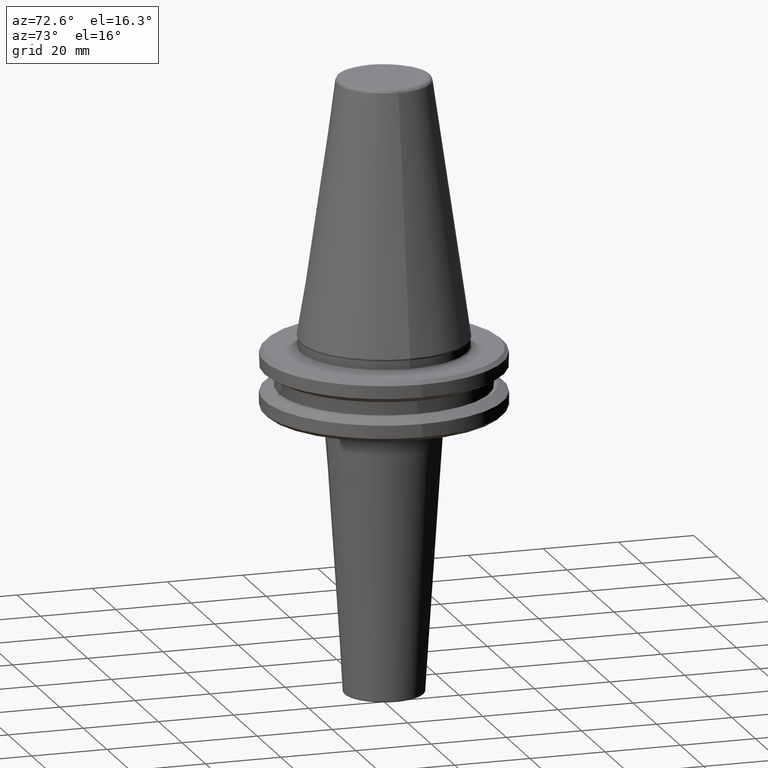
[diagram: clean part render]
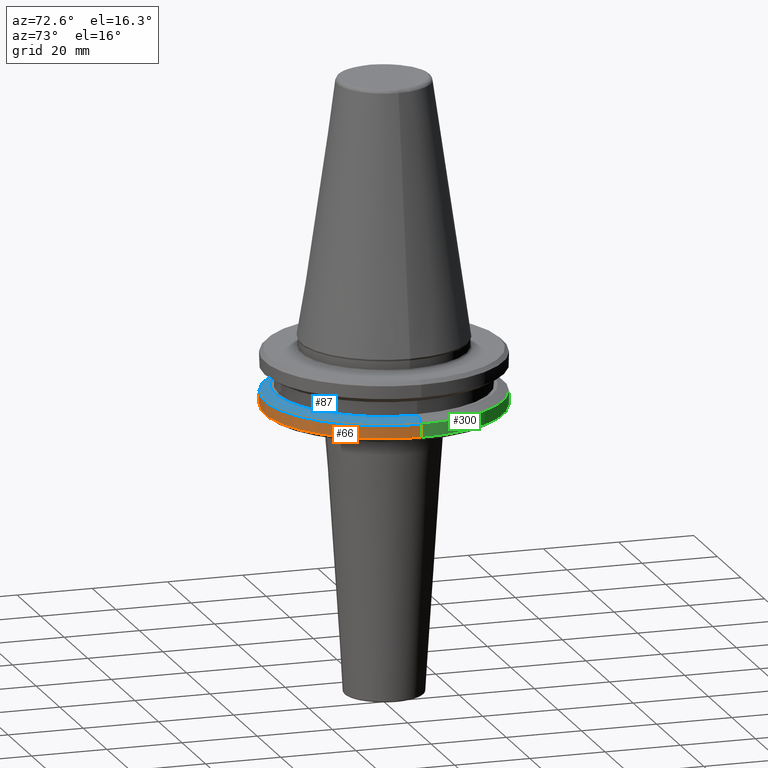
[diagram: same view with three faces highlighted in distinct colors, each labeled with its STEP entity id]
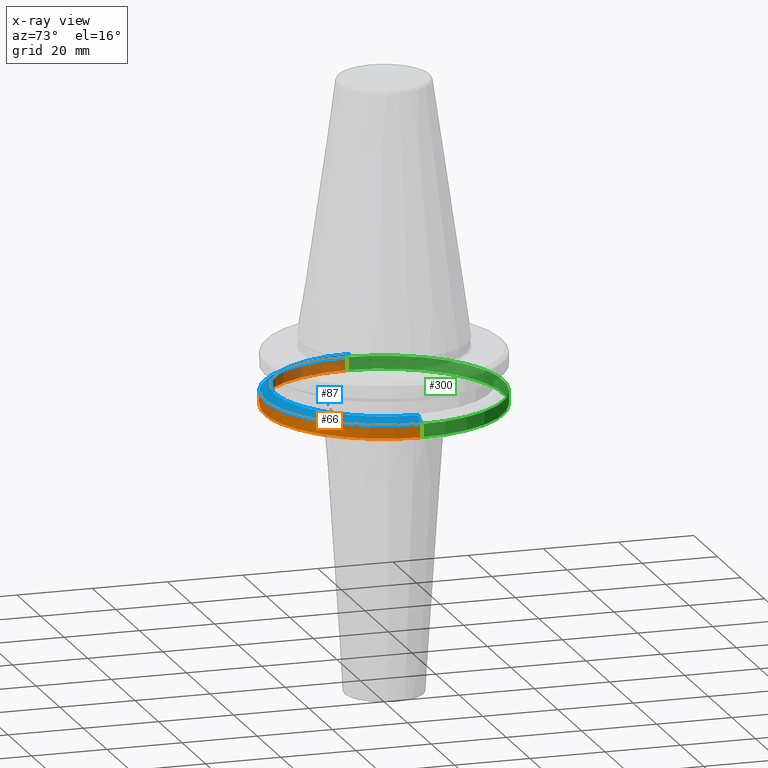
[diagram: x-ray of the same camera — body ghosted, the three highlighted faces saturated]
A machine part, auxiliary view with three faces highlighted in distinct colors.
The next image is the same camera in x-ray (body ghosted, the three faces saturated) — at least one of them is partly hidden behind the body in this view.
Their STEP definitions:

[orange] entity #66 — the highlighted cylindrical surface (partial cylindrical patch) has radius 31.75 mm, axis along (0, 0, 1).
#66 = ADVANCED_FACE ( 'NONE', ( #1091 ), #1267, .T. ) ;
#79 = CARTESIAN_POINT ( 'NONE',  ( 31.75000000000000000, 0.0000000000000000000, 113.5216080541959500 ) ) ;
#173 = ORIENTED_EDGE ( 'NONE', *, *, #1145, .F. ) ;
#200 = DIRECTION ( 'NONE',  ( -1.000000000000000000, 0.0000000000000000000, 0.0000000000000000000 ) ) ;
#212 = DIRECTION ( 'NONE',  ( -0.0000000000000000000, -0.0000000000000000000, 1.000000000000000000 ) ) ;
#215 = CARTESIAN_POINT ( 'NONE',  ( 0.0000000000000000000, 0.0000000000000000000, -14.62183664205671500 ) ) ;
#220 = ORIENTED_EDGE ( 'NONE', *, *, #349, .T. ) ;
#252 = DIRECTION ( 'NONE',  ( -0.0000000000000000000, -2.151315960516452700E-017, 1.000000000000000000 ) ) ;
#257 = CARTESIAN_POINT ( 'NONE',  ( 0.0000000000000000000, 1.842479672167118800E-015, -18.10000000000055900 ) ) ;
#328 = DIRECTION ( 'NONE',  ( 0.0000000000000000000, -1.000000000000000000, 0.0000000000000000000 ) ) ;
#341 = DIRECTION ( 'NONE',  ( 0.0000000000000000000, 0.0000000000000000000, 1.000000000000000000 ) ) ;
#349 = EDGE_CURVE ( 'NONE', #705, #422, #748, .T. ) ;
#362 = CARTESIAN_POINT ( 'NONE',  ( 31.75000000000000700, 0.0000000000000000000, -14.62183664205671500 ) ) ;
#390 = CARTESIAN_POINT ( 'NONE',  ( -31.75000000000000700, 3.888253587292847300E-015, -14.62183664205671500 ) ) ;
#415 = CARTESIAN_POINT ( 'NONE',  ( 31.74999999999947400, 0.0000000000000000000, -18.10000000000055900 ) ) ;
#422 = VERTEX_POINT ( 'NONE', #415 ) ;
#430 = CARTESIAN_POINT ( 'NONE',  ( -31.75000000000000000, 3.888253587292846500E-015, 113.5216080541959500 ) ) ;
#475 = AXIS2_PLACEMENT_3D ( 'NONE', #533, #847, #694 ) ;
#486 = VERTEX_POINT ( 'NONE', #390 ) ;
#488 = VECTOR ( 'NONE', #514, 1000.000000000000000 ) ;
#514 = DIRECTION ( 'NONE',  ( 0.0000000000000000000, 0.0000000000000000000, 1.000000000000000000 ) ) ;
#533 = CARTESIAN_POINT ( 'NONE',  ( 0.0000000000000000000, 0.0000000000000000000, 113.5216080541959500 ) ) ;
#694 = DIRECTION ( 'NONE',  ( 1.000000000000000000, 0.0000000000000000000, 0.0000000000000000000 ) ) ;
#705 = VERTEX_POINT ( 'NONE', #1525 ) ;
#748 = CIRCLE ( 'NONE', #1302, 31.75000000000005700 ) ;
#810 = EDGE_CURVE ( 'NONE', #486, #1420, #869, .T. ) ;
#847 = DIRECTION ( 'NONE',  ( 0.0000000000000000000, 0.0000000000000000000, 1.000000000000000000 ) ) ;
#869 = CIRCLE ( 'NONE', #1534, 31.75000000000000700 ) ;
#1091 = FACE_OUTER_BOUND ( 'NONE', #1477, .T. ) ;
#1145 = EDGE_CURVE ( 'NONE', #705, #486, #1419, .T. ) ;
#1243 = VECTOR ( 'NONE', #341, 1000.000000000000000 ) ;
#1267 = CYLINDRICAL_SURFACE ( 'NONE', #475, 31.75000000000000000 ) ;
#1270 = LINE ( 'NONE', #79, #488 ) ;
#1302 = AXIS2_PLACEMENT_3D ( 'NONE', #257, #252, #328 ) ;
#1419 = LINE ( 'NONE', #430, #1243 ) ;
#1420 = VERTEX_POINT ( 'NONE', #362 ) ;
#1428 = ORIENTED_EDGE ( 'NONE', *, *, #810, .F. ) ;
#1436 = ORIENTED_EDGE ( 'NONE', *, *, #1485, .T. ) ;
#1477 = EDGE_LOOP ( 'NONE', ( #173, #220, #1436, #1428 ) ) ;
#1485 = EDGE_CURVE ( 'NONE', #422, #1420, #1270, .T. ) ;
#1525 = CARTESIAN_POINT ( 'NONE',  ( -31.74999999999947400, 3.888253587292781800E-015, -18.10000000000055900 ) ) ;
#1534 = AXIS2_PLACEMENT_3D ( 'NONE', #215, #212, #200 ) ;

[blue] entity #87 — the highlighted conical surface has half-angle 60 deg.
#87 = ADVANCED_FACE ( 'NONE', ( #1483 ), #1222, .T. ) ;
#108 = EDGE_CURVE ( 'NONE', #224, #1420, #508, .T. ) ;
#200 = DIRECTION ( 'NONE',  ( -1.000000000000000000, 0.0000000000000000000, 0.0000000000000000000 ) ) ;
#212 = DIRECTION ( 'NONE',  ( -0.0000000000000000000, -0.0000000000000000000, 1.000000000000000000 ) ) ;
#215 = CARTESIAN_POINT ( 'NONE',  ( 0.0000000000000000000, 0.0000000000000000000, -14.62183664205671500 ) ) ;
#224 = VERTEX_POINT ( 'NONE', #1516 ) ;
#256 = CARTESIAN_POINT ( 'NONE',  ( -28.94089653438084400, 0.0000000000000000000, -13.00000000000000700 ) ) ;
#295 = LINE ( 'NONE', #1233, #929 ) ;
#318 = ORIENTED_EDGE ( 'NONE', *, *, #1100, .T. ) ;
#362 = CARTESIAN_POINT ( 'NONE',  ( 31.75000000000000700, 0.0000000000000000000, -14.62183664205671500 ) ) ;
#378 = AXIS2_PLACEMENT_3D ( 'NONE', #760, #606, #1207 ) ;
#390 = CARTESIAN_POINT ( 'NONE',  ( -31.75000000000000700, 3.888253587292847300E-015, -14.62183664205671500 ) ) ;
#445 = DIRECTION ( 'NONE',  ( -1.000000000000000000, 0.0000000000000000000, 0.0000000000000000000 ) ) ;
#450 = CARTESIAN_POINT ( 'NONE',  ( 31.75000000000000700, 3.888253587292847300E-015, -14.62183664205671700 ) ) ;
#452 = DIRECTION ( 'NONE',  ( 0.0000000000000000000, 0.0000000000000000000, -1.000000000000000000 ) ) ;
#455 = CARTESIAN_POINT ( 'NONE',  ( 0.0000000000000000000, 0.0000000000000000000, -13.00000000000000700 ) ) ;
#486 = VERTEX_POINT ( 'NONE', #390 ) ;
#503 = EDGE_LOOP ( 'NONE', ( #1162, #318, #1105, #1064 ) ) ;
#508 = LINE ( 'NONE', #450, #1512 ) ;
#606 = DIRECTION ( 'NONE',  ( 0.0000000000000000000, 0.0000000000000000000, -1.000000000000000000 ) ) ;
#760 = CARTESIAN_POINT ( 'NONE',  ( 0.0000000000000000000, 0.0000000000000000000, -14.62183664205671700 ) ) ;
#810 = EDGE_CURVE ( 'NONE', #486, #1420, #869, .T. ) ;
#859 = EDGE_CURVE ( 'NONE', #1495, #486, #295, .T. ) ;
#869 = CIRCLE ( 'NONE', #1534, 31.75000000000000700 ) ;
#906 = CIRCLE ( 'NONE', #916, 28.94089653438084400 ) ;
#916 = AXIS2_PLACEMENT_3D ( 'NONE', #455, #452, #445 ) ;
#929 = VECTOR ( 'NONE', #1221, 1000.000000000000000 ) ;
#1031 = DIRECTION ( 'NONE',  ( 0.8660254037844418200, 1.060575238724910700E-016, -0.4999999999999945000 ) ) ;
#1064 = ORIENTED_EDGE ( 'NONE', *, *, #810, .T. ) ;
#1100 = EDGE_CURVE ( 'NONE', #224, #1495, #906, .T. ) ;
#1105 = ORIENTED_EDGE ( 'NONE', *, *, #859, .T. ) ;
#1162 = ORIENTED_EDGE ( 'NONE', *, *, #108, .F. ) ;
#1207 = DIRECTION ( 'NONE',  ( -1.000000000000000000, 0.0000000000000000000, 0.0000000000000000000 ) ) ;
#1221 = DIRECTION ( 'NONE',  ( -0.8660254037844418200, 0.0000000000000000000, -0.4999999999999945000 ) ) ;
#1222 = CONICAL_SURFACE ( 'NONE', #378, 31.75000000000000700, 1.047197551196604100 ) ;
#1233 = CARTESIAN_POINT ( 'NONE',  ( -31.75000000000000700, 0.0000000000000000000, -14.62183664205671700 ) ) ;
#1420 = VERTEX_POINT ( 'NONE', #362 ) ;
#1483 = FACE_OUTER_BOUND ( 'NONE', #503, .T. ) ;
#1495 = VERTEX_POINT ( 'NONE', #256 ) ;
#1512 = VECTOR ( 'NONE', #1031, 1000.000000000000000 ) ;
#1516 = CARTESIAN_POINT ( 'NONE',  ( 28.94089653438084400, 3.716245608910601600E-015, -13.00000000000000700 ) ) ;
#1534 = AXIS2_PLACEMENT_3D ( 'NONE', #215, #212, #200 ) ;

[green] entity #300 — the highlighted cylindrical surface (partial cylindrical patch) has radius 31.75 mm, axis along (0, 0, 1).
#79 = CARTESIAN_POINT ( 'NONE',  ( 31.75000000000000000, 0.0000000000000000000, 113.5216080541959500 ) ) ;
#120 = ORIENTED_EDGE ( 'NONE', *, *, #995, .F. ) ;
#293 = ORIENTED_EDGE ( 'NONE', *, *, #1485, .F. ) ;
#300 = ADVANCED_FACE ( 'NONE', ( #524 ), #1334, .T. ) ;
#341 = DIRECTION ( 'NONE',  ( 0.0000000000000000000, 0.0000000000000000000, 1.000000000000000000 ) ) ;
#362 = CARTESIAN_POINT ( 'NONE',  ( 31.75000000000000700, 0.0000000000000000000, -14.62183664205671500 ) ) ;
#390 = CARTESIAN_POINT ( 'NONE',  ( -31.75000000000000700, 3.888253587292847300E-015, -14.62183664205671500 ) ) ;
#415 = CARTESIAN_POINT ( 'NONE',  ( 31.74999999999947400, 0.0000000000000000000, -18.10000000000055900 ) ) ;
#422 = VERTEX_POINT ( 'NONE', #415 ) ;
#430 = CARTESIAN_POINT ( 'NONE',  ( -31.75000000000000000, 3.888253587292846500E-015, 113.5216080541959500 ) ) ;
#486 = VERTEX_POINT ( 'NONE', #390 ) ;
#488 = VECTOR ( 'NONE', #514, 1000.000000000000000 ) ;
#514 = DIRECTION ( 'NONE',  ( 0.0000000000000000000, 0.0000000000000000000, 1.000000000000000000 ) ) ;
#524 = FACE_OUTER_BOUND ( 'NONE', #952, .T. ) ;
#546 = AXIS2_PLACEMENT_3D ( 'NONE', #967, #964, #961 ) ;
#569 = EDGE_CURVE ( 'NONE', #422, #705, #1168, .T. ) ;
#580 = AXIS2_PLACEMENT_3D ( 'NONE', #818, #1383, #1409 ) ;
#651 = ORIENTED_EDGE ( 'NONE', *, *, #1145, .T. ) ;
#705 = VERTEX_POINT ( 'NONE', #1525 ) ;
#818 = CARTESIAN_POINT ( 'NONE',  ( 0.0000000000000000000, 1.842479672167118800E-015, -18.10000000000055900 ) ) ;
#940 = CARTESIAN_POINT ( 'NONE',  ( 0.0000000000000000000, 0.0000000000000000000, 113.5216080541959500 ) ) ;
#952 = EDGE_LOOP ( 'NONE', ( #1430, #651, #120, #293 ) ) ;
#961 = DIRECTION ( 'NONE',  ( -1.000000000000000000, 0.0000000000000000000, 0.0000000000000000000 ) ) ;
#964 = DIRECTION ( 'NONE',  ( -0.0000000000000000000, -0.0000000000000000000, 1.000000000000000000 ) ) ;
#967 = CARTESIAN_POINT ( 'NONE',  ( 0.0000000000000000000, 0.0000000000000000000, -14.62183664205671500 ) ) ;
#995 = EDGE_CURVE ( 'NONE', #1420, #486, #1017, .T. ) ;
#1010 = DIRECTION ( 'NONE',  ( 1.000000000000000000, 0.0000000000000000000, 0.0000000000000000000 ) ) ;
#1017 = CIRCLE ( 'NONE', #546, 31.75000000000000700 ) ;
#1145 = EDGE_CURVE ( 'NONE', #705, #486, #1419, .T. ) ;
#1154 = AXIS2_PLACEMENT_3D ( 'NONE', #940, #1450, #1010 ) ;
#1168 = CIRCLE ( 'NONE', #580, 31.75000000000005700 ) ;
#1243 = VECTOR ( 'NONE', #341, 1000.000000000000000 ) ;
#1270 = LINE ( 'NONE', #79, #488 ) ;
#1334 = CYLINDRICAL_SURFACE ( 'NONE', #1154, 31.75000000000000000 ) ;
#1383 = DIRECTION ( 'NONE',  ( -0.0000000000000000000, -2.151315960516452700E-017, 1.000000000000000000 ) ) ;
#1409 = DIRECTION ( 'NONE',  ( 0.0000000000000000000, -1.000000000000000000, 0.0000000000000000000 ) ) ;
#1419 = LINE ( 'NONE', #430, #1243 ) ;
#1420 = VERTEX_POINT ( 'NONE', #362 ) ;
#1430 = ORIENTED_EDGE ( 'NONE', *, *, #569, .T. ) ;
#1450 = DIRECTION ( 'NONE',  ( 0.0000000000000000000, 0.0000000000000000000, 1.000000000000000000 ) ) ;
#1485 = EDGE_CURVE ( 'NONE', #422, #1420, #1270, .T. ) ;
#1525 = CARTESIAN_POINT ( 'NONE',  ( -31.74999999999947400, 3.888253587292781800E-015, -18.10000000000055900 ) ) ;